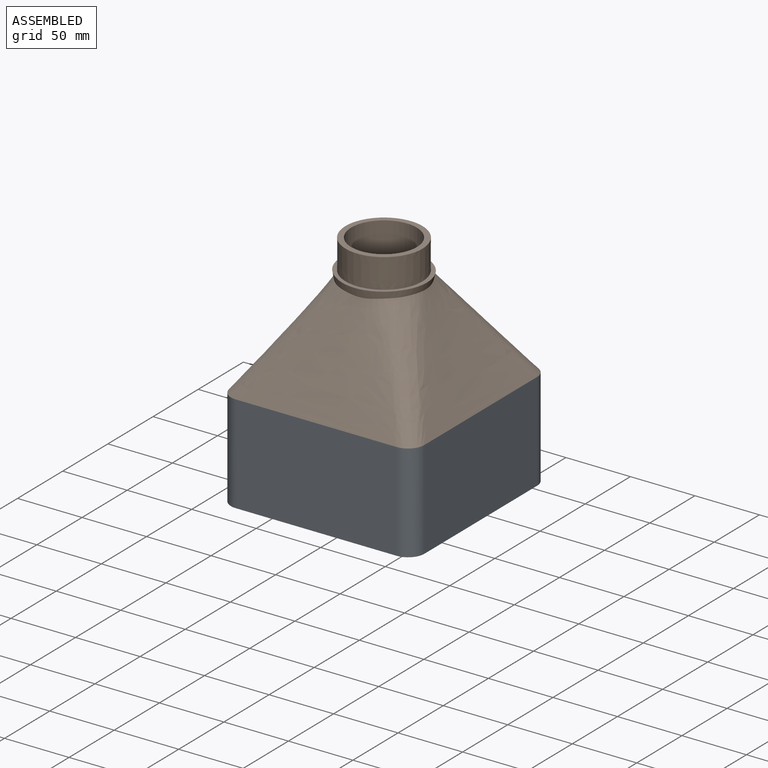
[diagram: assembled view]
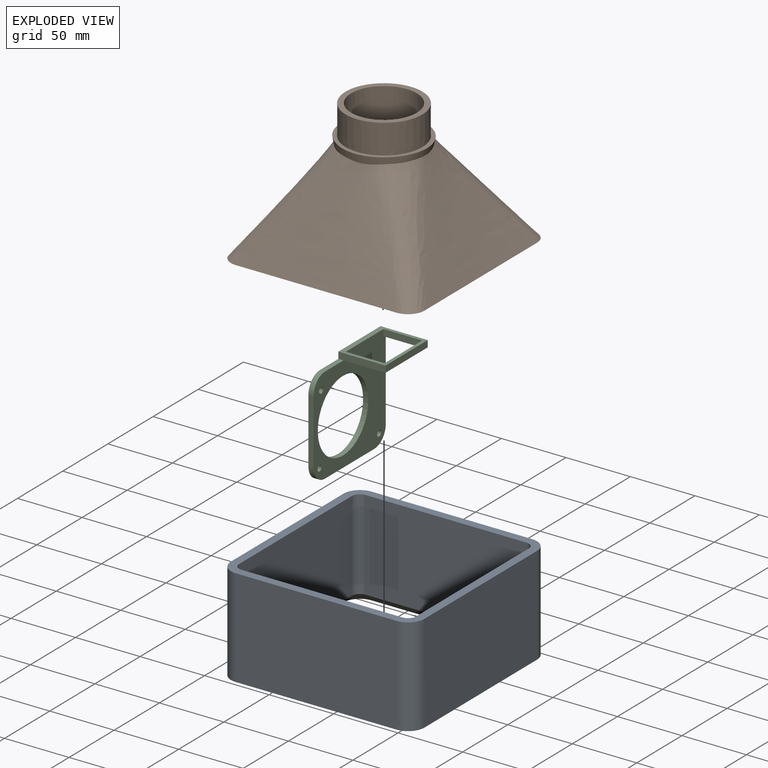
[diagram: exploded view]
GUIDED TOUR — MATED ASSEMBLY (Onshape document 5869a08994bf4c102c21ca9a, AutoMate assembly 5869a08994bf4c102c21ca9a_8da0d1abf6eb4638ad8284b2_6d0a025ed4cdadf9e5e37963_default)

This assembly has 3 components, labeled P0..P2 below (a component is one placed occurrence of a part; the same part can appear more than once), held together by 2 mates. A mate is a constraint between two components; its type names the relative motion it leaves free:
  FASTENED — locks the two components together rigidly (no relative motion).
Axis/direction vectors are unit vectors and 'through' points are millimeter coordinates, both in the assembly's world frame.

MATES
  1. FASTENED "Fastened 2": P0 <-> P1, direction (0.000, 0.000, 1.000) through (-73.00, 33.43, -20.08) mm
  2. FASTENED "Fastened 1": P1 <-> P2, direction (0.000, 0.000, -1.000) through (6.87, -52.28, 5.32) mm

ASSEMBLY ORDER
  1. P2 — the base component [order verified]
  2. P0 [order verified]
  3. P1 [order verified]
Order-tag legend:
  [order verified] — this step's position reverses a verified removal order: the component was checked to insert without passing through the ones already placed.

Of the 3 components, 1 carries the full construction recipe — the FeatureScript program that regenerates the part's solid from scratch; the rest are supplied as boundary geometry only.
Each toured component is shown spotlighted twice — in the assembled view, then in the exploded view, where a leader line traces a displaced component back to its assembled socket (saturated green if recipe-attached, orange if geometry-only; every other component desaturated gray) — followed by its recipe or geometry summary and the mates that hold it.
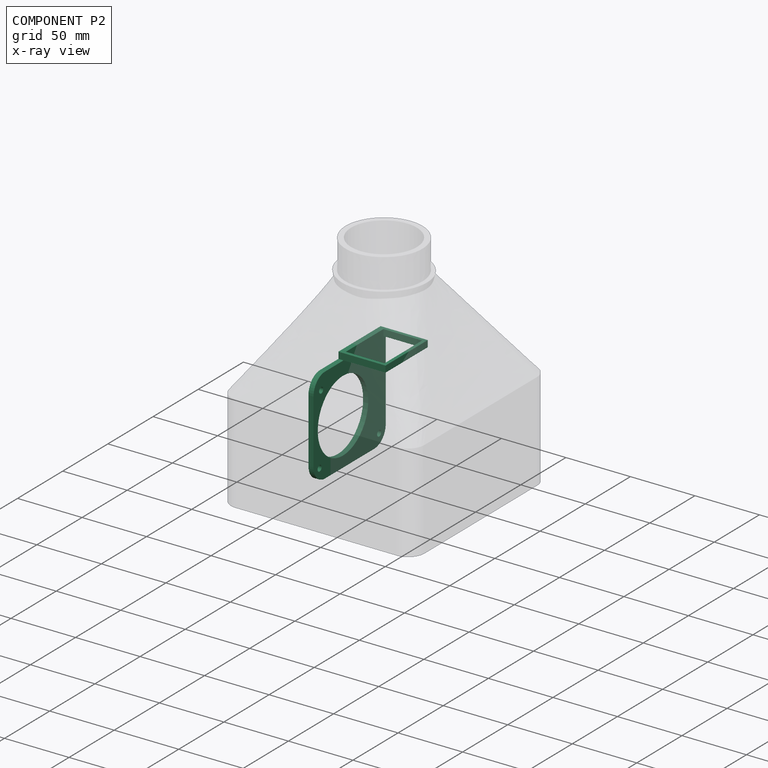
[diagram: component P2 — x-ray view]
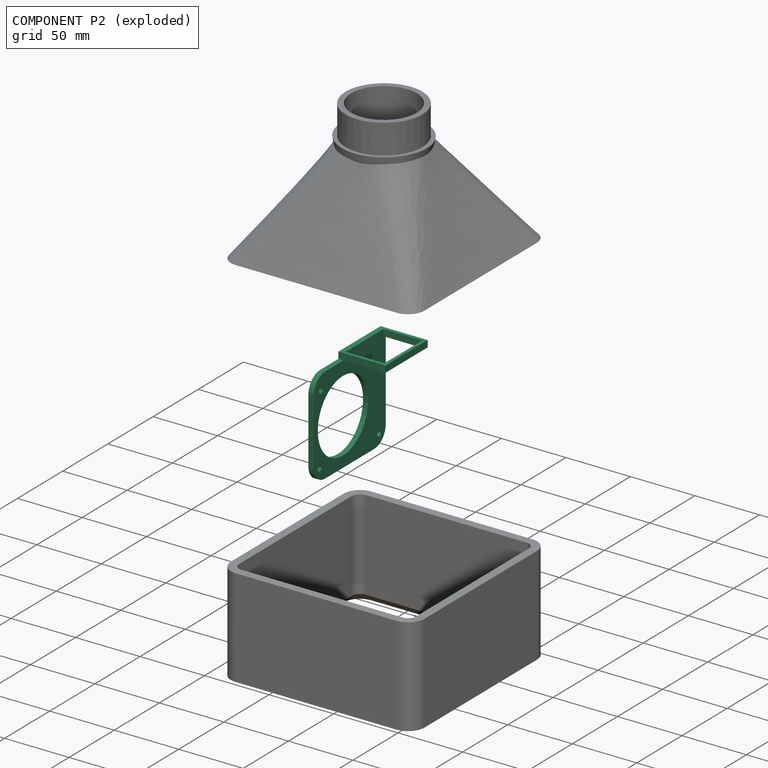
[diagram: component P2 — exploded]
COMPONENT P2 — recipe-attached (CADFS 00415677, mesh-verified: the recipe's output STEP matches this component's geometry to below the mesh-comparison resolution (tessellation chordal tolerance ~0.178 mm)).
Held by: FASTENED mate "Fastened 1" to P1.
Construction recipe (FeatureScript — the CAD program that rebuilds this solid; sketch coordinates are in the units given by the * unit suffixes, e.g. mm):

FeatureScript 1511;
import(path : "onshape/std/geometry.fs", version : "1511.0");
import(path : "onshape/std/common.fs", version : "1511.0");
const mm = millimeter;
const VERTEX = EntityType.VERTEX;
const EDGE = EntityType.EDGE;
const FACE = EntityType.FACE;
const BODY = EntityType.BODY;
function v(x, y){return vector(x, y);}
function OD(order){return orderDisambiguation(order);}
function OSD(set){return originalSetDisambiguation(set);}
function TD(topology){return topologyDisambiguation(topology);}
function TDD(query){return trueDependencyDisambiguation(query);}
function sQuery(a, b, c) {return sketchEntityQuery(a, b, c);}

annotation { "Feature Type Name" : "Feature", "Feature Type Description" : "" }
export const myFeature = defineFeature(function(context is Context, id is Id, definition is map)
    precondition{}
    {
        {
            assignVariable(context, id + "F0", {"name" : "thickness", "anyValue" : 4 * mm});
        }
        {
            var Q0;
            Q0=qCreatedBy(makeId("Top.planeOp"),FACE);
            var sketch = newSketch(context, id + "F1", { "sketchPlane" : qUnion([Q0])});
            skLineSegment(sketch, "E0.bottom", {"start": v(-55.38, 44) * mm, "end": v(6.92, 44) * mm});
            skLineSegment(sketch, "E0.top", {"start": v(-42.68, -36) * mm, "end": v(6.92, -36) * mm});
            skLineSegment(sketch, "E0.left", {"start": v(-55.38, 44) * mm, "end": v(-55.38, -23.3) * mm});
            skLineSegment(sketch, "E0.right", {"start": v(19.62, 31.3) * mm, "end": v(19.62, -23.3) * mm});
            skCircle(sketch, "E1", {"center": v(10.78, 36.66) * mm, "radius": 2.25 * mm});
            skLineSegment(sketch, "E2", {"start": v(-16.88, 52.33) * mm, "end": v(-16.88, -42.92) * mm});
            skLineSegment(sketch, "E3", {"start": v(-77.65, -3.34) * mm, "end": v(41.37, -3.34) * mm});
            skCircle(sketch, "E4", {"center": v(10.12, -29.26) * mm, "radius": 2.25 * mm});
            skCircle(sketch, "E5", {"center": v(-43.88, -27.55) * mm, "radius": 2.25 * mm});
            skPoint(sketch, "E6.visualSharp", {"position": v(19.62, -36) * mm});
            skArc(sketch, "E6.filletArc", {"start": v(6.92, -36) * mm, "mid": v(15.9, -32.28) * mm, "end": v(19.62, -23.3) * mm});
            skPoint(sketch, "E7.visualSharp", {"position": v(-55.38, -36) * mm});
            skArc(sketch, "E7.filletArc", {"start": v(-55.38, -23.3) * mm, "mid": v(-51.66, -32.28) * mm, "end": v(-42.68, -36) * mm});
            skPoint(sketch, "E8.visualSharp", {"position": v(19.62, 44) * mm});
            skArc(sketch, "E8.filletArc", {"start": v(19.62, 31.3) * mm, "mid": v(15.9, 40.28) * mm, "end": v(6.92, 44) * mm});
            skCircle(sketch, "E9", {"center": v(-16.88, -3.34) * mm, "radius": 27.94 * mm});
            skSolve(sketch);
        }
        {
            var Q0;
            Q0=makeQuery(id+"F1.imprint","IMPRINT",FACE,{"disambiguationData":[TD([[makeQuery(id+"F1.imprint","IMPRINT",EDGE,{"derivedFrom":sQuery(id+"F1.wireOp",EDGE,"E1")}),-1.0]])]});
            var Q1;
            Q1=makeQuery(id+"F1.imprint","IMPRINT",FACE,{"disambiguationData":[TD([[makeQuery(id+"F1.imprint","IMPRINT",EDGE,{"derivedFrom":sQuery(id+"F1.wireOp",EDGE,"E4")}),-1.0]])]});
            var Q2;
            Q2=makeQuery(id+"F1.imprint","IMPRINT",FACE,{"disambiguationData":[TD([[makeQuery(id+"F1.imprint","IMPRINT",EDGE,{"derivedFrom":sQuery(id+"F1.wireOp",EDGE,"E5")}),-1.0]])]});
            var Q3;
            {var subQ0=sQuery(id+"F1.wireOp",EDGE,"E0.left");var subQ1=sQuery(id+"F1.wireOp",EDGE,"E0.bottom");var subQ2=makeQuery(id+"F1.imprint","INTERSECT",VERTEX,{"derivedFrom":[subQ1,subQ0]});Q3=makeQuery(id+"F1.imprint","IMPRINT",FACE,{"disambiguationData":[TD([[makeQuery(id+"F1.imprint","IMPRINT",EDGE,{"disambiguationData":[TD([[subQ2,-1.0]])],"derivedFrom":subQ1}),-1.0]])]});}
            extrude(context, id + "F2", {"entities" : qUnion([Q0, Q1, Q2, Q3]), "depth" : getVariable(context, 'thickness')});
        }
        {
            var Q0;
            Q0=makeQuery(id+"F2.opExtrude","SWEPT_FACE",FACE,{"disambiguationData":[OSD([sQuery(id+"F1.wireOp",EDGE,"E0.left")])]});
            var sketch = newSketch(context, id + "F3", { "sketchPlane" : qUnion([Q0])});
            skLineSegment(sketch, "E10.bottom", {"start": v(2.78, 36.54) * mm, "end": v(-44, 36.54) * mm});
            skLineSegment(sketch, "E10.top", {"start": v(2.78, 0) * mm, "end": v(-44, 0) * mm});
            skLineSegment(sketch, "E10.left", {"start": v(2.78, 36.54) * mm, "end": v(2.78, 0) * mm});
            skLineSegment(sketch, "E10.right", {"start": v(-44, 36.54) * mm, "end": v(-44, 0) * mm});
            skPoint(sketch, "E11.endSnap0", {"position": v(-20.6, 0) * mm});
            skLineSegment(sketch, "E12", {"start": v(-20.6, 36.54) * mm, "end": v(-20.6, 0) * mm, "construction": true});
            skLineSegment(sketch, "E13", {"start": v(-44, 18.27) * mm, "end": v(2.78, 18.27) * mm, "construction": true});
            skSolve(sketch);
        }
        {
            var Q0;
            {var subQ0=sQuery(id+"F3.wireOp",EDGE,"E10.top");Q0=makeQuery(id+"F3.imprint","IMPRINT",FACE,{"disambiguationData":[TD([[makeQuery(id+"F3.imprint","IMPRINT",EDGE,{"derivedFrom":subQ0}),1.0]])]});}
            var Q1;
            {var subQ0=sQuery(id+"F3.wireOp",EDGE,"E10.bottom");Q1=makeQuery(id+"F3.imprint","IMPRINT",FACE,{"disambiguationData":[TD([[makeQuery(id+"F3.imprint","IMPRINT",EDGE,{"derivedFrom":subQ0}),1.0]])]});}
            extrude(context, id + "F4", {"entities" : qUnion([Q0, Q1]), "operationType" : NewBodyOperationType.ADD, "depth" : 5.08 * mm});
        }
        {
            var Q0;
            Q0=makeQuery(id+"F4.opExtrude","CAP_FACE",FACE,{"disambiguationData":[OSD([sQuery(id+"F3.wireOp",EDGE,"E10.bottom"),sQuery(id+"F3.wireOp",EDGE,"E10.top"),sQuery(id+"F3.wireOp",EDGE,"E10.left"),sQuery(id+"F3.wireOp",EDGE,"E10.right")])],"isStart":false});
            var sketch = newSketch(context, id + "F5", { "sketchPlane" : qUnion([Q0])});
            skLineSegment(sketch, "E14.bottom", {"start": v(-41.46, 34) * mm, "end": v(0.24, 34) * mm});
            skLineSegment(sketch, "E14.top", {"start": v(-41.46, 4) * mm, "end": v(0.24, 4) * mm});
            skLineSegment(sketch, "E14.left", {"start": v(-41.46, 34) * mm, "end": v(-41.46, 4) * mm});
            skLineSegment(sketch, "E14.right", {"start": v(0.24, 34) * mm, "end": v(0.24, 4) * mm});
            skSolve(sketch);
        }
        {
            var Q0;
            Q0=qSketchRegion(id+"F5",true);
            extrude(context, id + "F6", {"entities" : qUnion([Q0]), "operationType" : NewBodyOperationType.REMOVE, "oppositeDirection" : true, "depth" : 25.4 * mm});
        }
    });
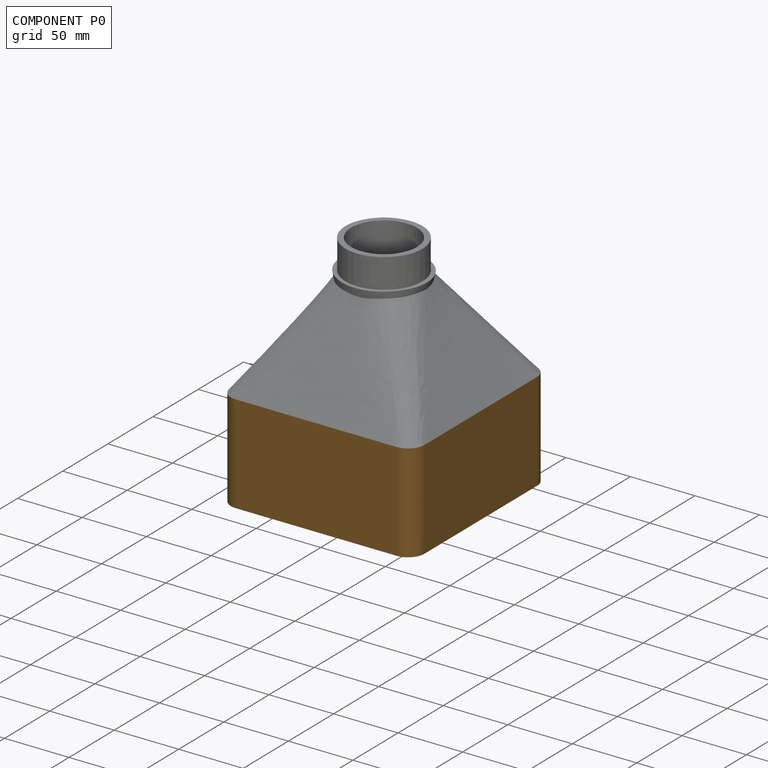
[diagram: component P0 — assembled]
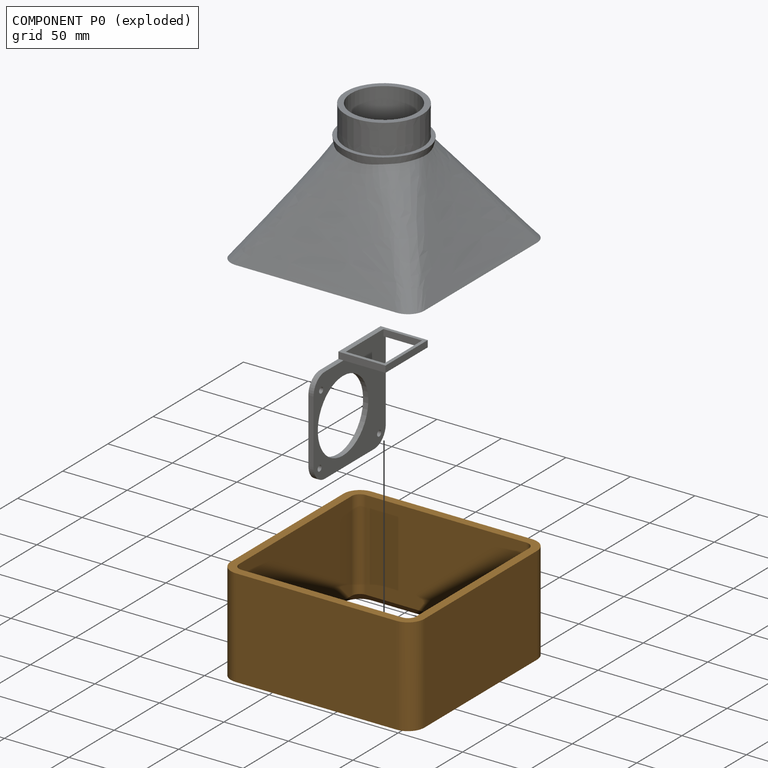
[diagram: component P0 — exploded]
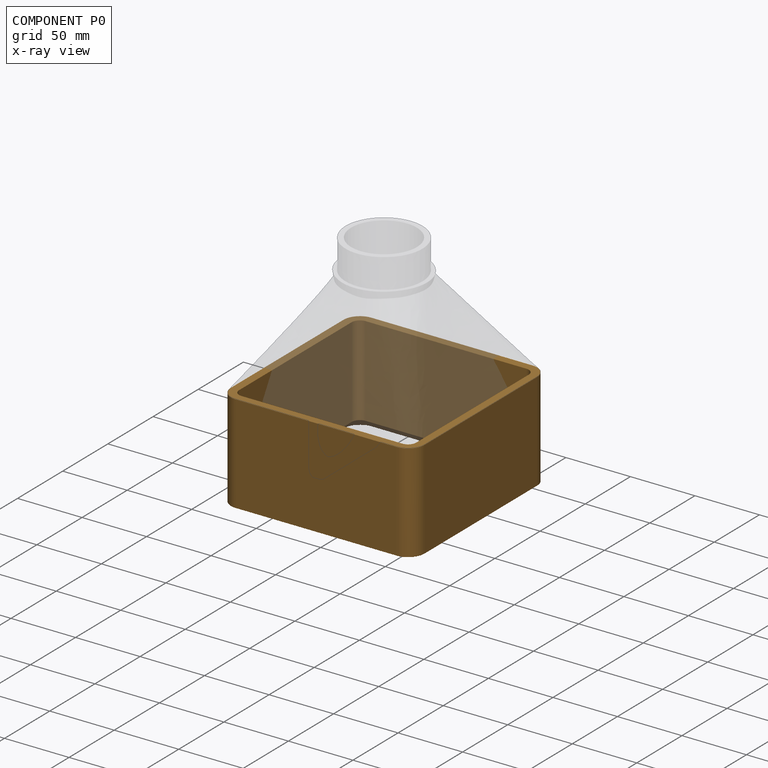
[diagram: component P0 — x-ray view]
COMPONENT P0 — geometry summary (no construction recipe available for this part):
  bounding box: 150.0 x 150.0 x 76.2 mm
  B-rep topology: 1 solid, 25 faces, 112 edges
  volume: 258995 mm^3 (15% of its bounding box)
  symmetry: 4-fold rotationally symmetric about the z axis; mirror-symmetric across its x mid-plane, y mid-plane
Held by: FASTENED mate "Fastened 2" to P1.
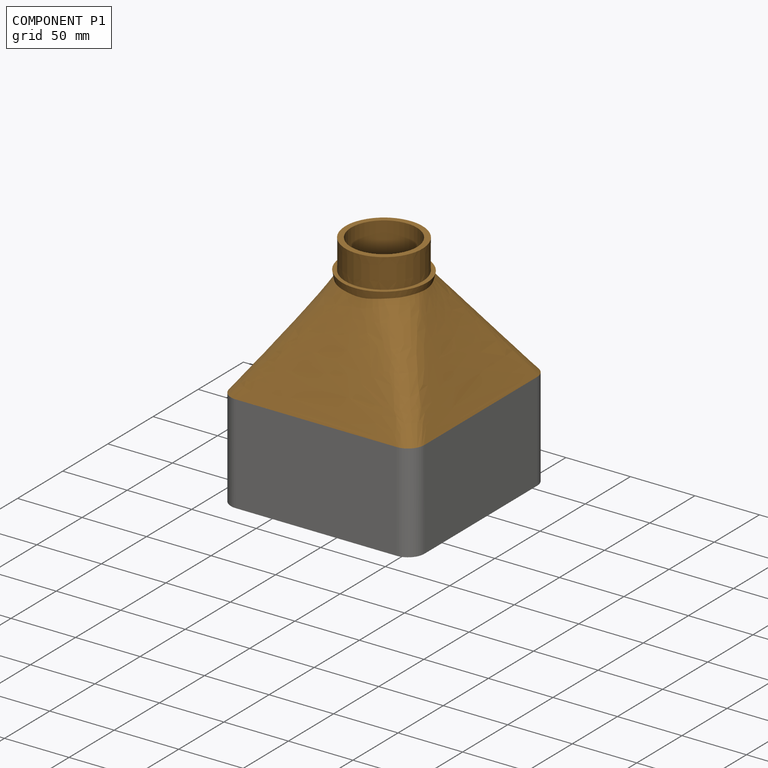
[diagram: component P1 — assembled]
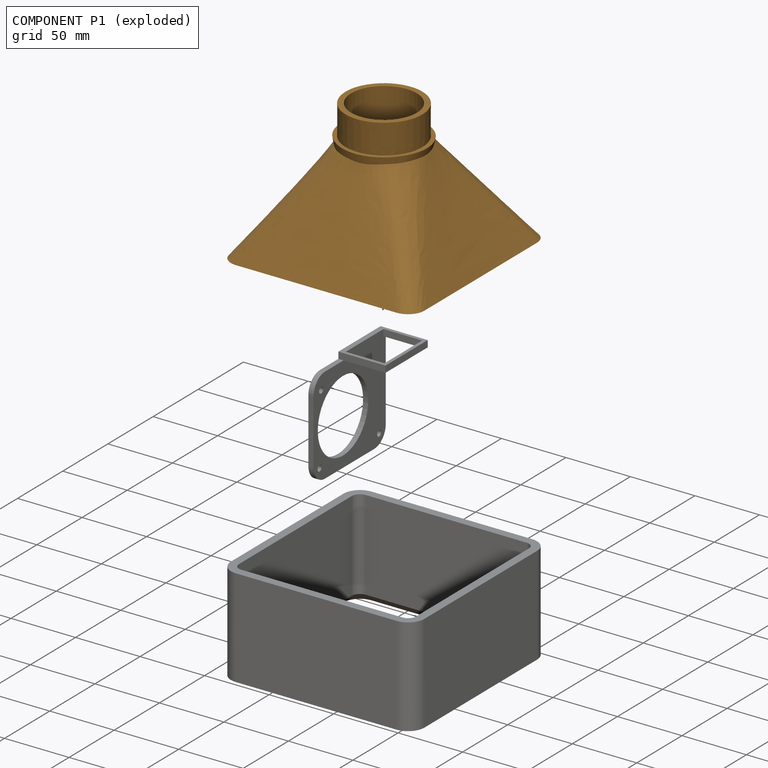
[diagram: component P1 — exploded]
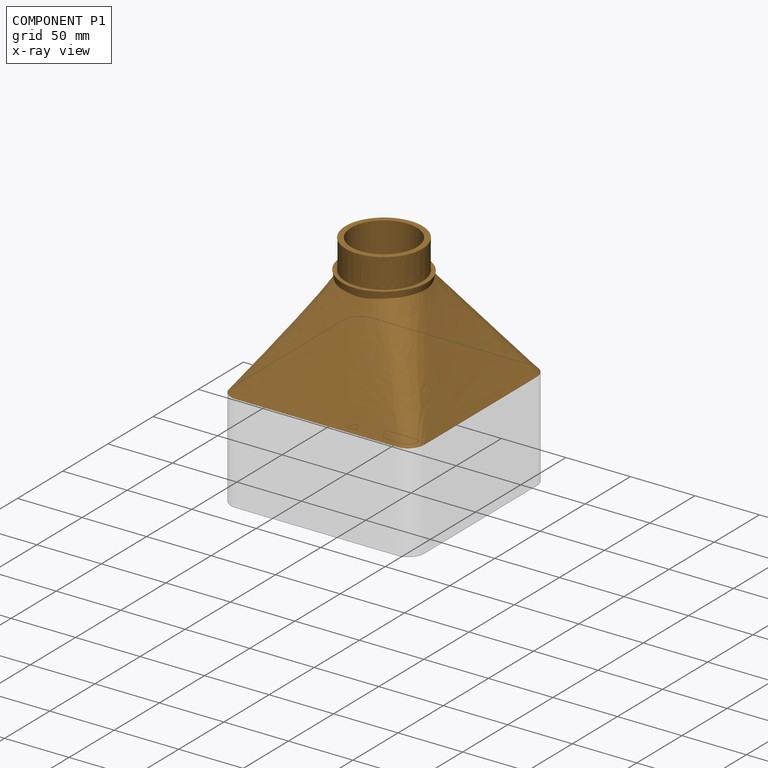
[diagram: component P1 — x-ray view]
COMPONENT P1 — geometry summary (no construction recipe available for this part):
  bounding box: 177.2 x 177.2 x 128.8 mm
  B-rep topology: 1 solid, 29 faces, 174 edges
  volume: 254142 mm^3 (6% of its bounding box)
  symmetry: 2-fold rotationally symmetric about the z axis
Held by: FASTENED mate "Fastened 2" to P0; FASTENED mate "Fastened 1" to P2.
PROVENANCE & LICENSES
Assembly (occurrences, transforms, mates, per-part STEP geometry): AutoMate dataset, Zenodo record 7776208, CC0.
Construction recipes: CADFS (HuggingFace VladPyatov/CADFS, CC-BY-4.0, layered over the ABC dataset), FeatureScript reconstruction programs keyed by ABC model id.
Join: ABC meta listings map ABC model id -> Onshape documentId; within a shared document, parts are matched by geometric signature (bounding-box dims + volume at 0.1% relative tolerance, exact B-rep face/solid counts).
Verification: 1 of this assembly's 3 components carries a recipe attachment, and every attachment is mesh-verified: the CADFS STEP and the AutoMate member STEP were compared as meshes in their shared local frame (symmetric sampled-point-to-mesh distance); worst across the 1 attachment: below the mesh-comparison resolution (tessellation chordal tolerance ~0.178 mm) on a 119 mm part.
Renders: orthographic iso camera (az 35 / el 25); the floor grid conveys scale (grid pitch printed in each image; no ruler). In the exploded view each component is displaced by its stored offset vector: the offsets alone carry the explosion direction (mate normal/axis signs are not orientation cues and do not encode it), and separation distances are assigned per mate-chain, not proportionally to assembly-order depth.
